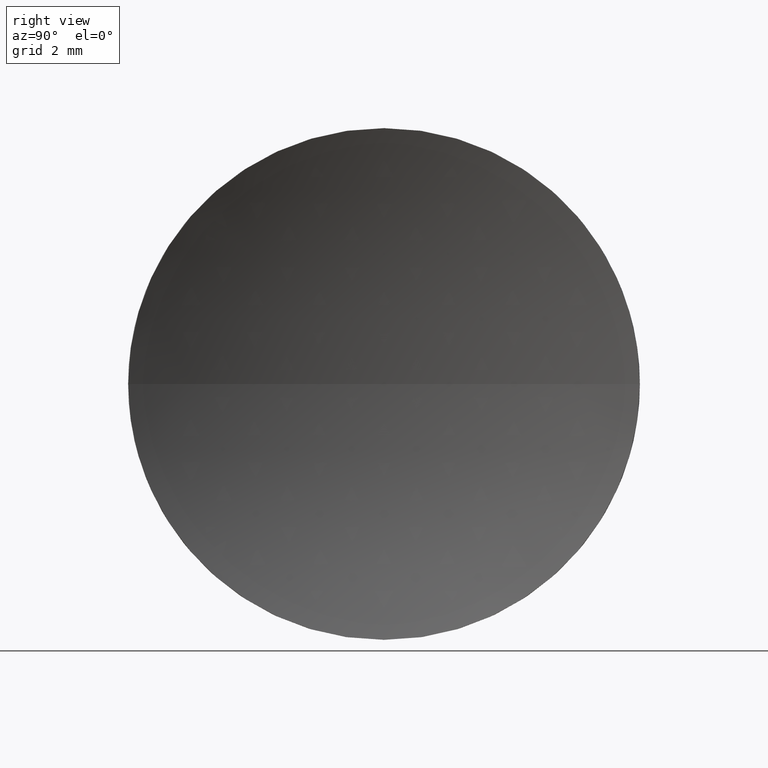
[diagram: clean part render]
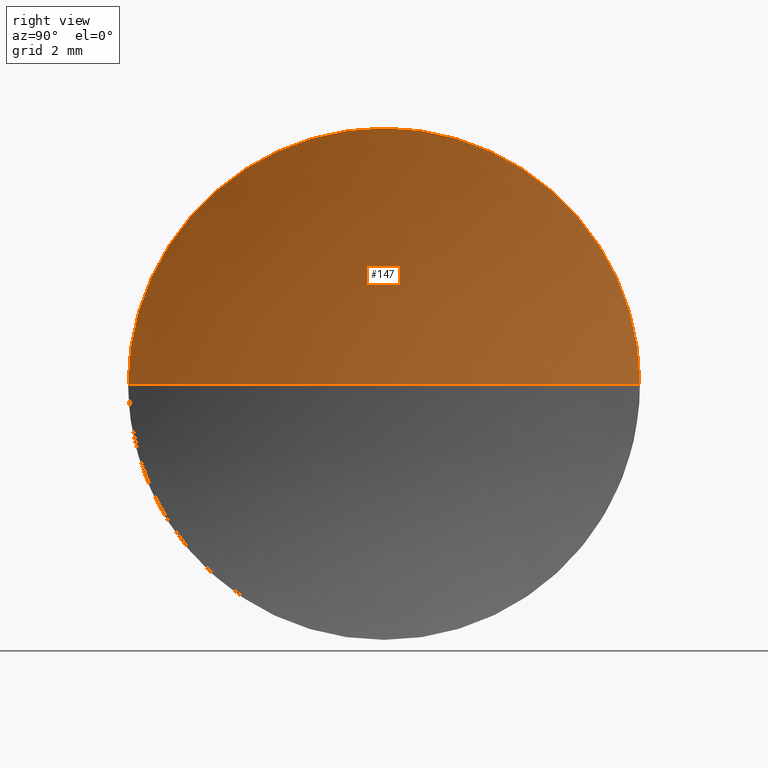
[diagram: same view with one face highlighted and labeled with its STEP entity id]
A machine part, right view. The second image highlights one B-rep face of the part: STEP entity #147.
In plain terms, the highlighted spherical surface has radius 18.34 mm.
Its self-contained STEP definition (entity closure, byte-faithful):
#5 = CARTESIAN_POINT ( 'NONE',  ( 67.59370850148246700, 28.47759563463748100, 0.0000000000000000000 ) ) ;
#8 = CIRCLE ( 'NONE', #123, 6.350000000000008500 ) ;
#12 = VERTEX_POINT ( 'NONE', #186 ) ;
#13 = ORIENTED_EDGE ( 'NONE', *, *, #148, .F. ) ;
#17 = EDGE_CURVE ( 'NONE', #43, #125, #8, .T. ) ;
#28 = CARTESIAN_POINT ( 'NONE',  ( 50.38809604507743200, 28.47759563463748100, 0.0000000000000000000 ) ) ;
#29 = ORIENTED_EDGE ( 'NONE', *, *, #17, .F. ) ;
#38 = AXIS2_PLACEMENT_3D ( 'NONE', #5, #113, #145 ) ;
#42 = DIRECTION ( 'NONE',  ( 0.0000000000000000000, -1.000000000000000000, -1.224646799147353000E-016 ) ) ;
#43 = VERTEX_POINT ( 'NONE', #137 ) ;
#59 = DIRECTION ( 'NONE',  ( 0.0000000000000000000, -1.224646799147353200E-016, 1.000000000000000000 ) ) ;
#65 = CIRCLE ( 'NONE', #178, 18.34000000000000000 ) ;
#68 = EDGE_CURVE ( 'NONE', #12, #112, #65, .T. ) ;
#70 = DIRECTION ( 'NONE',  ( -1.000000000000000000, 0.0000000000000000000, 0.0000000000000000000 ) ) ;
#78 = DIRECTION ( 'NONE',  ( -1.000000000000000000, -0.0000000000000000000, -0.0000000000000000000 ) ) ;
#83 = EDGE_LOOP ( 'NONE', ( #85, #13, #29, #97 ) ) ;
#85 = ORIENTED_EDGE ( 'NONE', *, *, #68, .F. ) ;
#87 = CARTESIAN_POINT ( 'NONE',  ( 67.59370850148246700, 28.47759563463748100, 0.0000000000000000000 ) ) ;
#88 = AXIS2_PLACEMENT_3D ( 'NONE', #143, #78, #174 ) ;
#97 = ORIENTED_EDGE ( 'NONE', *, *, #99, .T. ) ;
#99 = EDGE_CURVE ( 'NONE', #43, #112, #118, .T. ) ;
#111 = CARTESIAN_POINT ( 'NONE',  ( 50.38809604507743200, 28.47759563463748100, 6.350000000000007600 ) ) ;
#112 = VERTEX_POINT ( 'NONE', #163 ) ;
#113 = DIRECTION ( 'NONE',  ( 0.0000000000000000000, 0.0000000000000000000, 1.000000000000000000 ) ) ;
#118 = CIRCLE ( 'NONE', #183, 18.33999999999999600 ) ;
#121 = DIRECTION ( 'NONE',  ( 0.0000000000000000000, 0.0000000000000000000, -1.000000000000000000 ) ) ;
#122 = FACE_OUTER_BOUND ( 'NONE', #83, .T. ) ;
#123 = AXIS2_PLACEMENT_3D ( 'NONE', #28, #151, #166 ) ;
#125 = VERTEX_POINT ( 'NONE', #111 ) ;
#137 = CARTESIAN_POINT ( 'NONE',  ( 50.38809604507743200, 22.12759563463748000, 0.0000000000000000000 ) ) ;
#138 = CARTESIAN_POINT ( 'NONE',  ( 67.59370850148246700, 28.47759563463748100, 0.0000000000000000000 ) ) ;
#143 = CARTESIAN_POINT ( 'NONE',  ( 50.38809604507743200, 28.47759563463748100, 0.0000000000000000000 ) ) ;
#145 = DIRECTION ( 'NONE',  ( 0.0000000000000000000, -1.000000000000000000, 0.0000000000000000000 ) ) ;
#147 = ADVANCED_FACE ( 'NONE', ( #122 ), #180, .F. ) ;
#148 = EDGE_CURVE ( 'NONE', #125, #12, #185, .T. ) ;
#151 = DIRECTION ( 'NONE',  ( -1.000000000000000000, -0.0000000000000000000, -0.0000000000000000000 ) ) ;
#163 = CARTESIAN_POINT ( 'NONE',  ( 49.25370850148247100, 28.47759563463748100, 0.0000000000000000000 ) ) ;
#166 = DIRECTION ( 'NONE',  ( 0.0000000000000000000, 0.0000000000000000000, 1.000000000000000000 ) ) ;
#174 = DIRECTION ( 'NONE',  ( 0.0000000000000000000, 0.0000000000000000000, 1.000000000000000000 ) ) ;
#178 = AXIS2_PLACEMENT_3D ( 'NONE', #138, #59, #42 ) ;
#180 = SPHERICAL_SURFACE ( 'NONE', #38, 18.34000000000000000 ) ;
#183 = AXIS2_PLACEMENT_3D ( 'NONE', #87, #121, #70 ) ;
#185 = CIRCLE ( 'NONE', #88, 6.350000000000008500 ) ;
#186 = CARTESIAN_POINT ( 'NONE',  ( 50.38809604507743200, 34.82759563463748300, 7.776507174585693100E-016 ) ) ;